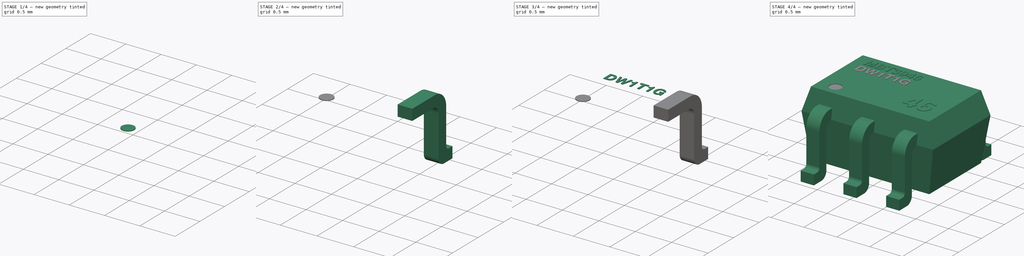
[diagram: build sequence overview — one tinted view per stage of 4, left to right]
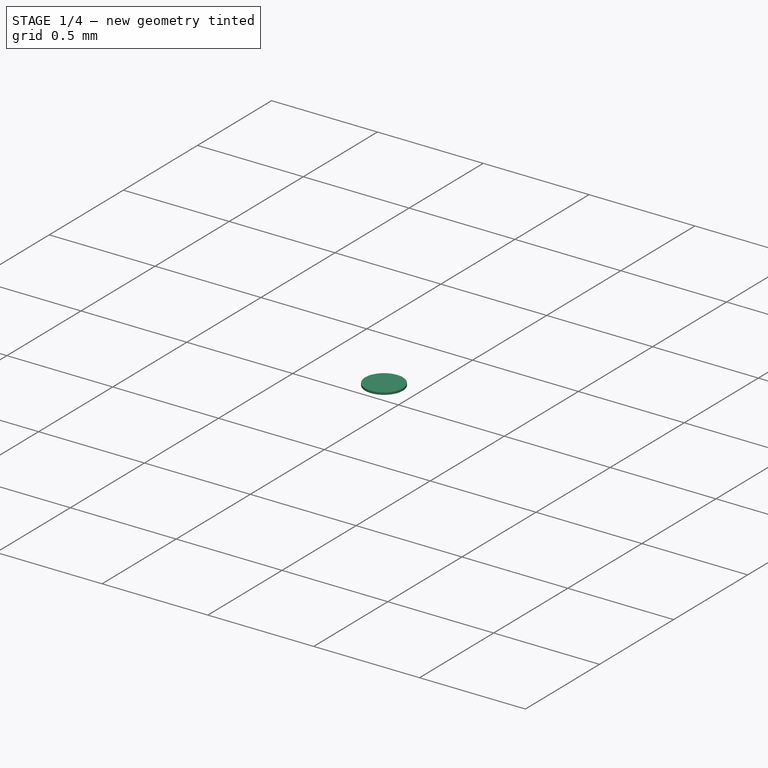
[diagram: stage 1 of 4 — iso view after this stage's code; geometry added in this stage tinted green]
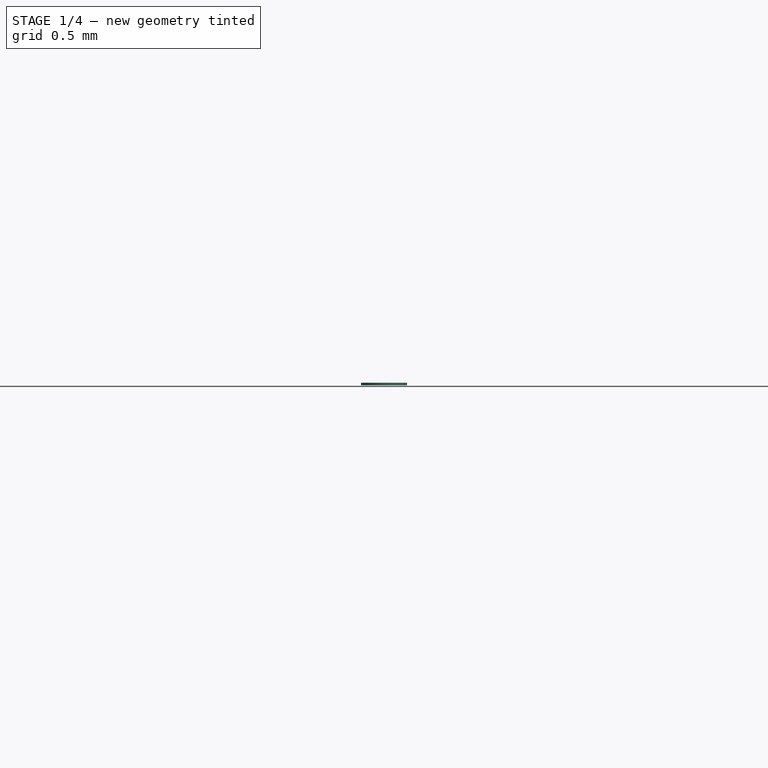
[diagram: stage 1 of 4 — front view after this stage's code; geometry added in this stage tinted green]
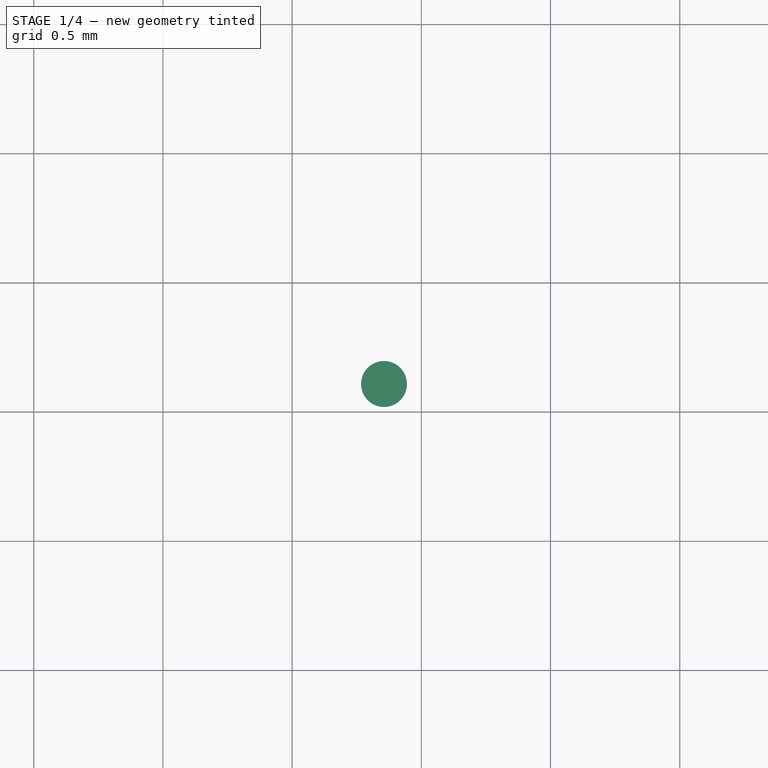
[diagram: stage 1 of 4 — top view after this stage's code; geometry added in this stage tinted green]
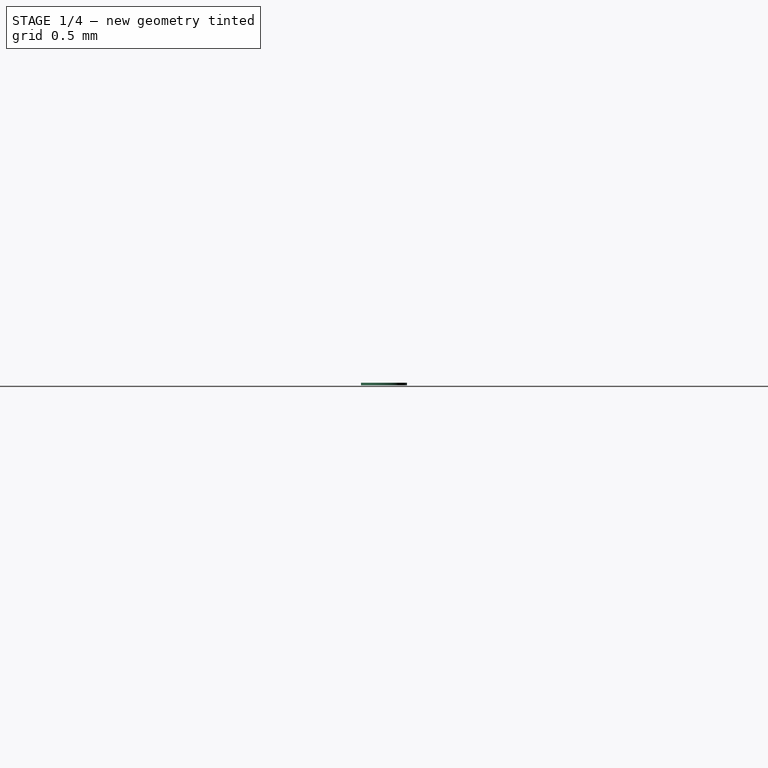
[diagram: stage 1 of 4 — right view after this stage's code; geometry added in this stage tinted green]
FCSTD DOCUMENT  (FreeCAD 0.19R16945 (Git))
Label: SC-88_SC-70-6_SOT-363
License: All rights reserved
LicenseURL: http://en.wikipedia.org/wiki/All_rights_reserved
objects: PartDesign::Body×8, Sketcher::SketchObject×6, PartDesign::FeatureBase×5, Part::Part2DObjectPython×3, Part::Extrusion×3, PartDesign::Pad×2, Spreadsheet::Sheet×1, PartDesign::AdditiveLoft×1, PartDesign::Pocket×1, PartDesign::ShapeBinder×1, Part::MultiFuse×1
note: 35 computed .brp shape members not serialized (recipe doc carries the construction recipe); baked Part::Feature solids carry a one-line shape summary decoded from their .brp

FEATURE [Spreadsheet::Sheet] Spreadsheet
  cells = A1=sc-88 sc-70-6 ; B1=NOM; A2=d_A; B2(d_A)==1.1mm; C2=max 1.1, no nom; A3=d_A1; B3(d_A1)==0.05mm; A4=d_b; B4(d_b)==0.2mm; A5=d_c; B5(d_c)==0.15mm; C5=x; A6=d_D; B6(d_D)==1.6mm; A7=d_E; B7(d_E)==0.8mm; A8=d_e; B8(d_e)==1mm; A9=d_L; B9(d_L)==0.15mm; A10=d_L1; C10=x; A11=d_HE; B11(d_HE)==1.6mm; A12=d_T; B12(d_T)=2; C12=angle; A14=d_C; B14(d_C)=0.85; C14=package draft factor
FEATURE [Sketcher::SketchObject] Sketch  label="Mid"
  AttachmentOffset = pos=(0,0,0.76) rot=(0,0,1;0rad)
  MapMode = 5
  Placement = pos=(0,0,0.76) rot=(0,0,1;0rad)
  Support = -> [XY_Plane]
  expr: AttachmentOffset.Base.z = 0.1 + 0.6 * 1.1
  sketch-geometry (4):
    g0: LineSegment StartX=-1 StartY=0.625 StartZ=0 EndX=1 EndY=0.625 EndZ=0
    g1: LineSegment StartX=1 StartY=0.625 StartZ=0 EndX=1 EndY=-0.625 EndZ=0
    g2: LineSegment StartX=1 StartY=-0.625 StartZ=0 EndX=-1 EndY=-0.625 EndZ=0
    g3: LineSegment StartX=-1 StartY=-0.625 StartZ=0 EndX=-1 EndY=0.625 EndZ=0
  constraints (11):
    c: Coincident(g0,g1)
    c: Coincident(g1,g2)
    c: Coincident(g2,g3)
    c: Coincident(g3,g0)
    c: Horizontal(g0)
    c: Horizontal(g2)
    c: Vertical(g1)
    c: Vertical(g3)
    c: Symmetric(g0,g2,g-1)
    c: DistanceX(g0,g0) = 2
    c: DistanceY(g3,g3) = 1.25
FEATURE [Sketcher::SketchObject] Sketch001  label="Bottom"
  AttachmentOffset = pos=(0,0,0.1) rot=(0,0,1;0rad)
  MapMode = 5
  Placement = pos=(0,0,0.1) rot=(0,0,1;0rad)
  Support = -> [XY_Plane]
  expr: Constraints[10] = 0.9 * 1.25
  expr: Constraints[9] = 0.9 * 2
  sketch-geometry (4):
    g0: LineSegment StartX=-0.9 StartY=0.5625 StartZ=0 EndX=0.9 EndY=0.5625 EndZ=0
    g1: LineSegment StartX=0.9 StartY=0.5625 StartZ=0 EndX=0.9 EndY=-0.5625 EndZ=0
    g2: LineSegment StartX=0.9 StartY=-0.5625 StartZ=0 EndX=-0.9 EndY=-0.5625 EndZ=0
    g3: LineSegment StartX=-0.9 StartY=-0.5625 StartZ=0 EndX=-0.9 EndY=0.5625 EndZ=0
  constraints (11):
    c: Coincident(g0,g1)
    c: Coincident(g1,g2)
    c: Coincident(g2,g3)
    c: Coincident(g3,g0)
    c: Horizontal(g0)
    c: Horizontal(g2)
    c: Vertical(g1)
    c: Vertical(g3)
    c: Symmetric(g0,g2,g-1)
    c: DistanceX(g0,g0) = 1.8
    c: DistanceY(g3,g3) = 1.125
FEATURE [Sketcher::SketchObject] Sketch002  label="Top"
  AttachmentOffset = pos=(0,0,1.1) rot=(0,0,1;0rad)
  MapMode = 5
  Placement = pos=(0,0,1.1) rot=(0,0,1;0rad)
  Support = -> [XY_Plane]
  expr: Constraints[9] = 0.9 * 2
  expr: Constraints[10] = 0.9 * 1.25
  sketch-geometry (4):
    g0: LineSegment StartX=-0.9 StartY=0.5625 StartZ=0 EndX=0.9 EndY=0.5625 EndZ=0
    g1: LineSegment StartX=0.9 StartY=0.5625 StartZ=0 EndX=0.9 EndY=-0.5625 EndZ=0
    g2: LineSegment StartX=0.9 StartY=-0.5625 StartZ=0 EndX=-0.9 EndY=-0.5625 EndZ=0
    g3: LineSegment StartX=-0.9 StartY=-0.5625 StartZ=0 EndX=-0.9 EndY=0.5625 EndZ=0
  constraints (11):
    c: Coincident(g0,g1)
    c: Coincident(g1,g2)
    c: Coincident(g2,g3)
    c: Coincident(g3,g0)
    c: Horizontal(g0)
    c: Horizontal(g2)
    c: Vertical(g1)
    c: Vertical(g3)
    c: Symmetric(g0,g2,g-1)
    c: DistanceX(g0,g0) = 1.8
    c: DistanceY(g3,g3) = 1.125
FEATURE [PartDesign::AdditiveLoft] AdditiveLoft
  Closed = true
  Profile = -> Sketch002
  Ruled = true
  Sections = -> [Sketch,Sketch001]
FEATURE [PartDesign::Body] Body006  label="LeadClone5"
  BaseFeature = -> Body001
  Group = -> [Clone004]
  Origin = -> Origin006
  Placement = pos=(-0.65,0,0) rot=(0,0,1;0rad)
  Tip = -> Clone004
FEATURE [Sketcher::SketchObject] Sketch004
  MapMode = 5
  Placement = pos=(0,0,1.1) rot=(0,0,1;0rad)
  Support = -> [AdditiveLoft]
  sketch-geometry (1):
    g0: Circle CenterX=-0.64443 CenterY=-0.391248 CenterZ=0 NormalX=0 NormalY=0 NormalZ=1 AngleXU=0 Radius=0.088803
FEATURE [PartDesign::Pocket] Pocket
  BaseFeature = -> AdditiveLoft
  Length = 0.02
  Length2 = 100
  Profile = -> Sketch004
  Type = 0
FEATURE [PartDesign::Body] Body  label="Housing"
  Group = -> [Sketch,Sketch001,Sketch002,AdditiveLoft,Sketch004,Pocket]
  Origin = -> Origin
  Tip = -> Pocket
FEATURE [PartDesign::ShapeBinder] ShapeBinder
  Placement = pos=(0,0,-0.02) rot=(0,0,1;0rad)
  Support = -> [Pocket]
  TraceSupport = false
FEATURE [Sketcher::SketchObject] Sketch005
  ExternalGeometry = -> [ShapeBinder]
  MapMode = 5
  Placement = pos=(0,0,1.08) rot=(0,0,1;0rad)
  Support = -> [ShapeBinder]
  sketch-geometry (1):
    g0: Circle CenterX=-0.64443 CenterY=-0.391248 CenterZ=0 NormalX=0 NormalY=0 NormalZ=1 AngleXU=0 Radius=0.088803
  constraints (2):
    c: Coincident(g0,g-3)
    c: Equal(g0,g-3)
FEATURE [PartDesign::Pad] Pad001
  Length = 0.01
  Length2 = 100
  Placement = pos=(0,0,-0.02) rot=(0,0,1;0rad)
  Profile = -> Sketch005
  Type = 0
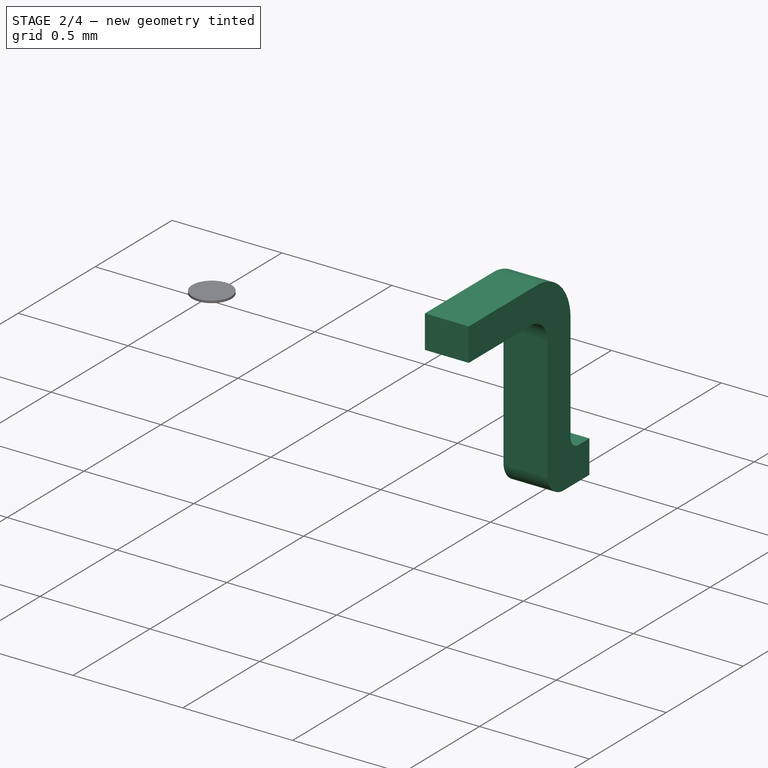
[diagram: stage 2 of 4 — iso view after this stage's code; geometry added in this stage tinted green]
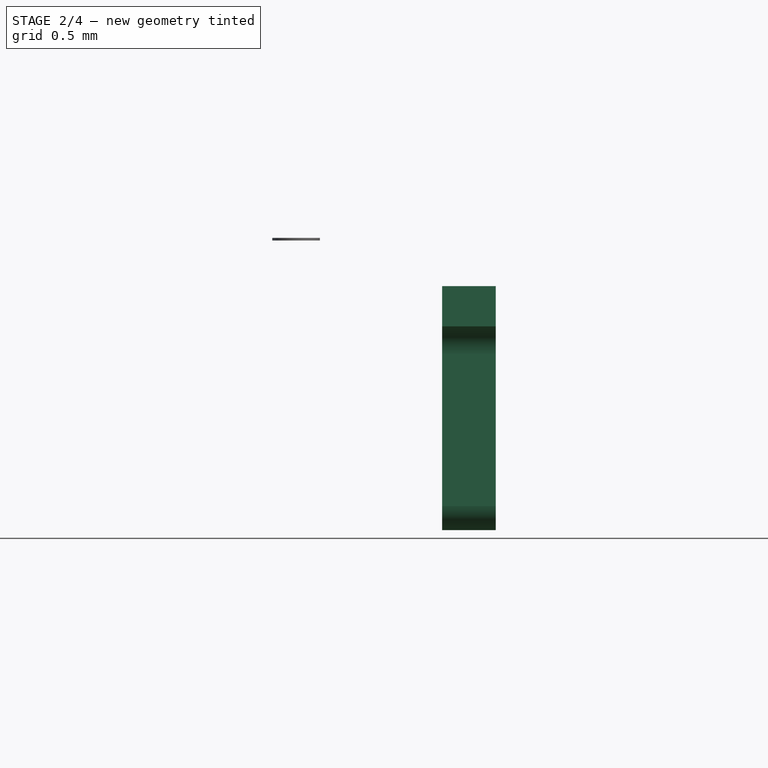
[diagram: stage 2 of 4 — front view after this stage's code; geometry added in this stage tinted green]
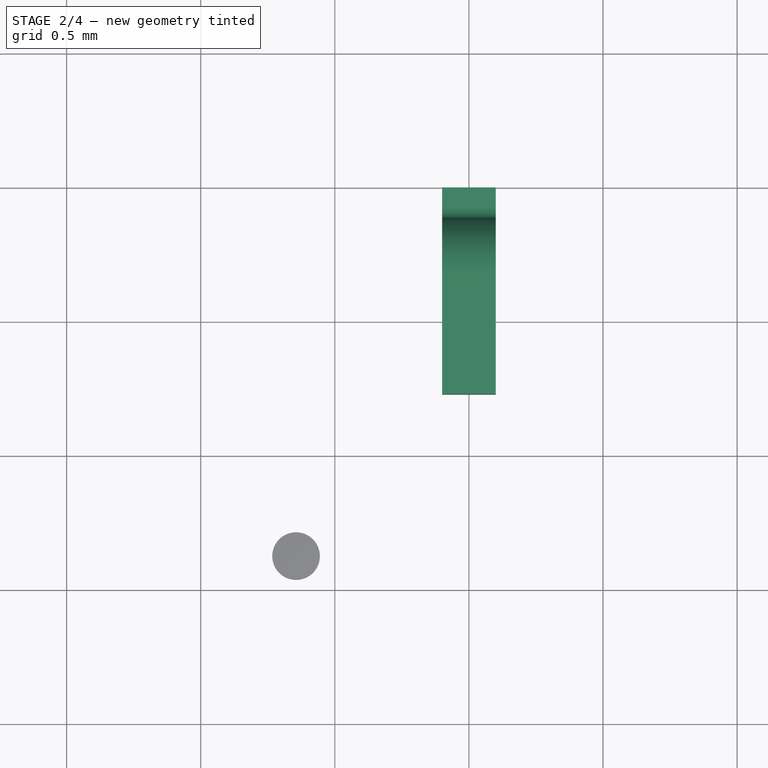
[diagram: stage 2 of 4 — top view after this stage's code; geometry added in this stage tinted green]
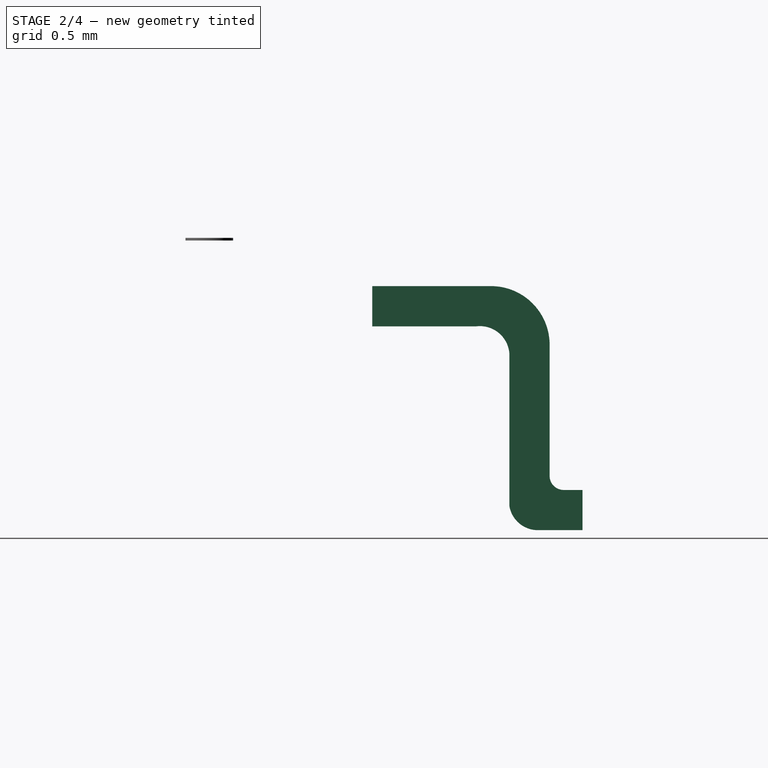
[diagram: stage 2 of 4 — right view after this stage's code; geometry added in this stage tinted green]
FEATURE [Sketcher::SketchObject] Sketch003
  MapMode = 5
  Placement = pos=(0,0,0) rot=(0.57735,0.57735,0.57735;2.0944rad)
  Support = -> [YZ_Plane001]
  expr: Constraints[25] = 0.1 + 0.6 * 1.1
  sketch-geometry (12):
    g0: LineSegment StartX=0.833676 StartY=0 StartZ=0 EndX=1 EndY=0 EndZ=0
    g1: ArcOfCircle CenterX=0.833676 CenterY=0.107595 CenterZ=0 NormalX=0 NormalY=0 NormalZ=1 AngleXU=0 Radius=0.107595 StartAngle=3.30444 EndAngle=4.71239
    g2: LineSegment StartX=1 StartY=0 StartZ=0 EndX=1 EndY=0.15 EndZ=0
    g3: LineSegment StartX=1 StartY=0.15 StartZ=0 EndX=0.932298 EndY=0.15 EndZ=0
    g4: ArcOfCircle CenterX=0.929816 CenterY=0.202266 CenterZ=0 NormalX=0 NormalY=0 NormalZ=1 AngleXU=0 Radius=0.0523248 StartAngle=3.16481 EndAngle=4.75985
    g5: LineSegment StartX=0.727505 StartY=0.0901505 StartZ=0 EndX=0.727505 EndY=0.657408 EndZ=0
    g6: LineSegment StartX=0.877505 StartY=0.201051 StartZ=0 EndX=0.877505 EndY=0.691246 EndZ=0
    g7: ArcOfCircle CenterX=0.617351 CenterY=0.650394 CenterZ=0 NormalX=0 NormalY=0 NormalZ=1 AngleXU=0 Radius=0.110377 StartAngle=0.0635886 EndAngle=1.6891
    g8: LineSegment StartX=0.604323 StartY=0.76 StartZ=0 EndX=0.216153 EndY=0.76 EndZ=0
    g9: LineSegment StartX=0.216153 StartY=0.76 StartZ=0 EndX=0.216153 EndY=0.91 EndZ=0
    g10: LineSegment StartX=0.216153 StartY=0.91 StartZ=0 EndX=0.658751 EndY=0.91 EndZ=0
    g11: ArcOfCircle CenterX=0.658751 CenterY=0.691246 CenterZ=0 NormalX=0 NormalY=0 NormalZ=1 AngleXU=0 Radius=0.218754 StartAngle=0 EndAngle=1.5708
  constraints (26):
    c: PointOnObject(g0,g-1)
    c: PointOnObject(g0,g-1)
    c: DistanceX(g-1,g0) = 1
    c: Tangent(g1,g0) = -1.5708
    c: Coincident(g2,g0)
    c: Vertical(g2)
    c: DistanceY(g2,g2) = 0.15
    c: Coincident(g3,g2)
    c: Horizontal(g3)
    c: Coincident(g4,g3)
    c: Coincident(g5,g1)
    c: Vertical(g5)
    c: Coincident(g6,g4)
    c: Vertical(g6)
    c: DistanceX(g1,g4) = 0.15
    c: Coincident(g7,g5)
    c: Coincident(g8,g7)
    c: Horizontal(g8)
    c: Coincident(g9,g8)
    c: Vertical(g9)
    c: Coincident(g10,g9)
    c: Horizontal(g10)
    c: DistanceY(g9,g9) = 0.15
    c: Tangent(g6,g11) = -1.5708
    c: Tangent(g10,g11) = 1.5708
    c: DistanceY(g-1,g8) = 0.76
FEATURE [PartDesign::Pad] Pad
  Length = 0.2
  Length2 = 100
  Midplane = true
  Placement = pos=(0,0,0) rot=(0.57735,0.57735,0.57735;2.0944rad)
  Profile = -> Sketch003
  Type = 0
FEATURE [PartDesign::Body] Body004  label="LeadClone3"
  BaseFeature = -> Body001
  Group = -> [Clone002]
  Origin = -> Origin004
  Placement = pos=(0,0,0) rot=(0,0,1;3.14159rad)
  Tip = -> Clone002
FEATURE [PartDesign::FeatureBase] Clone003
  BaseFeature = -> Body001
FEATURE [PartDesign::Body] Body005  label="LeadClone4"
  BaseFeature = -> Body001
  Group = -> [Clone003]
  Origin = -> Origin005
  Placement = pos=(0.65,0,0) rot=(0,0,1;0rad)
  Tip = -> Clone003
FEATURE [PartDesign::FeatureBase] Clone004
  BaseFeature = -> Body001
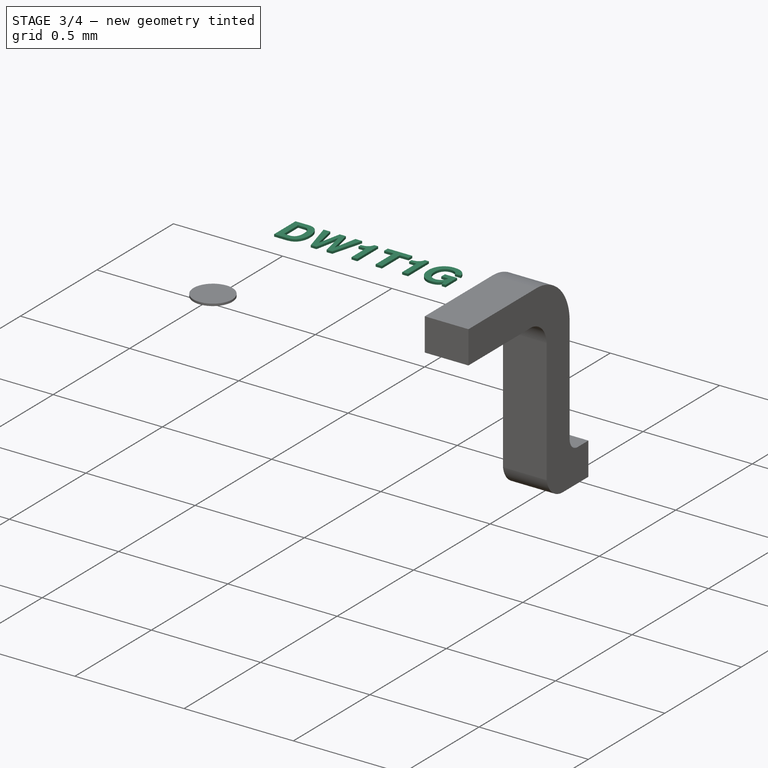
[diagram: stage 3 of 4 — iso view after this stage's code; geometry added in this stage tinted green]
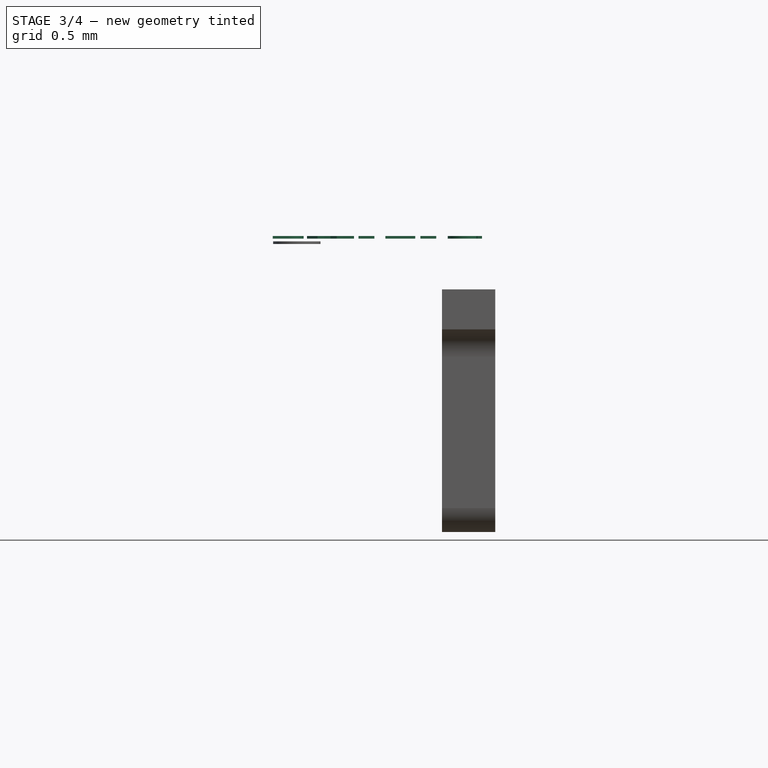
[diagram: stage 3 of 4 — front view after this stage's code; geometry added in this stage tinted green]
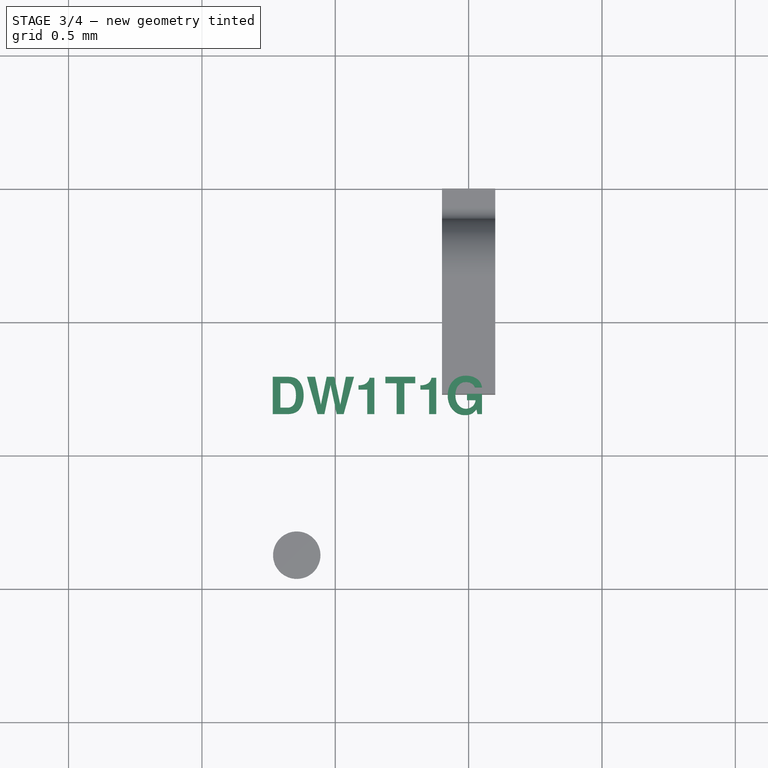
[diagram: stage 3 of 4 — top view after this stage's code; geometry added in this stage tinted green]
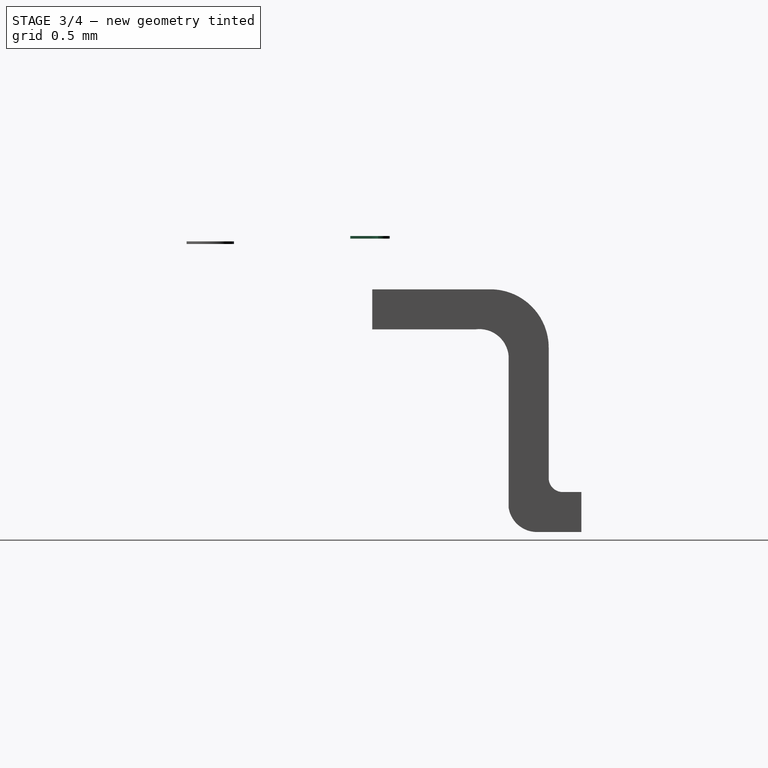
[diagram: stage 3 of 4 — right view after this stage's code; geometry added in this stage tinted green]
FEATURE [PartDesign::Body] Body001  label="Lead"
  Group = -> [Sketch003,Pad]
  Origin = -> Origin001
  Tip = -> Pad
FEATURE [PartDesign::FeatureBase] Clone
  BaseFeature = -> Body001
FEATURE [PartDesign::Body] Body002  label="LeadClone1"
  BaseFeature = -> Body001
  Group = -> [Clone]
  Origin = -> Origin002
  Placement = pos=(0.65,0,0) rot=(0,0,1;3.14159rad)
  Tip = -> Clone
  expr: Placement.Base.x = 0.65
FEATURE [PartDesign::FeatureBase] Clone001
  BaseFeature = -> Body001
FEATURE [PartDesign::Body] Body003  label="LeadClone2"
  BaseFeature = -> Body001
  Group = -> [Clone001]
  Origin = -> Origin003
  Placement = pos=(-0.65,0,0) rot=(0,0,1;3.14159rad)
  Tip = -> Clone001
  expr: Placement.Base.x = -0.65
FEATURE [Part::Part2DObjectPython] ShapeString002  # Draft 2D object (typed FeaturePython)
  AttachmentOffset = pos=(-0.15,-0.7,0) rot=(0,0,1;3.14159rad)
  FontFile = <userpath>/Desktop/GitHub/freecad-projects/00-fonts/FreeSansBold.ttf
  MapMode = 6
  Placement = pos=(-0.75,0.1375,1.1) rot=(0,0,1;0rad)
  Size = 0.075
  String = DW1T1G
  Support = -> [AdditiveLoft]
  Tracking = 0
FEATURE [Part::Extrusion] Extrude002
  Base = -> ShapeString002
  Dir = (0,0,1)
  DirMode = 2
  FaceMakerClass = Part::FaceMakerBullseye
  LengthFwd = 0.01
  LengthRev = 0
  Solid = false
  Symmetric = false
FEATURE [PartDesign::FeatureBase] Clone002
  BaseFeature = -> Body001
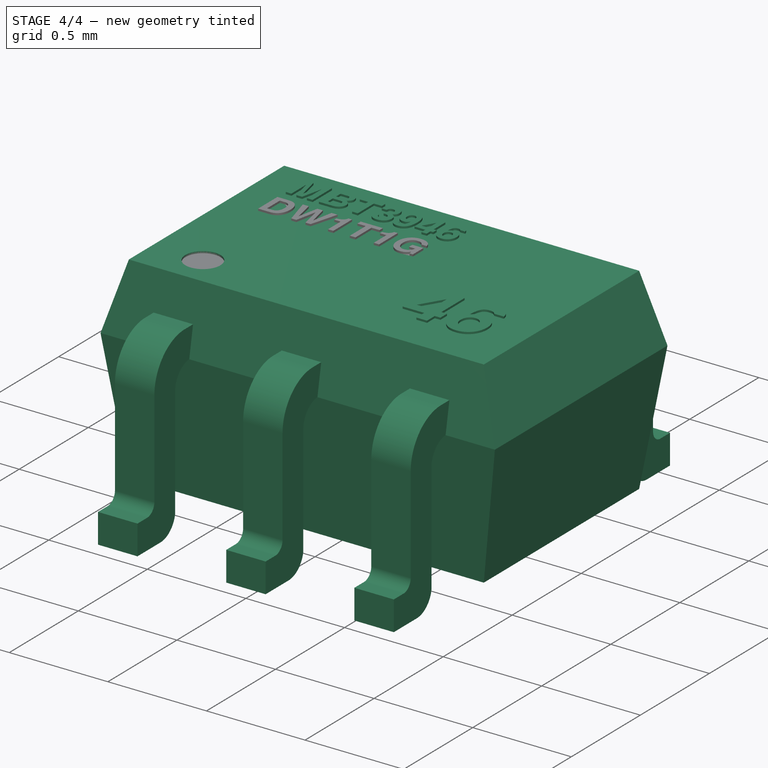
[diagram: stage 4 of 4 — iso view after this stage's code; geometry added in this stage tinted green]
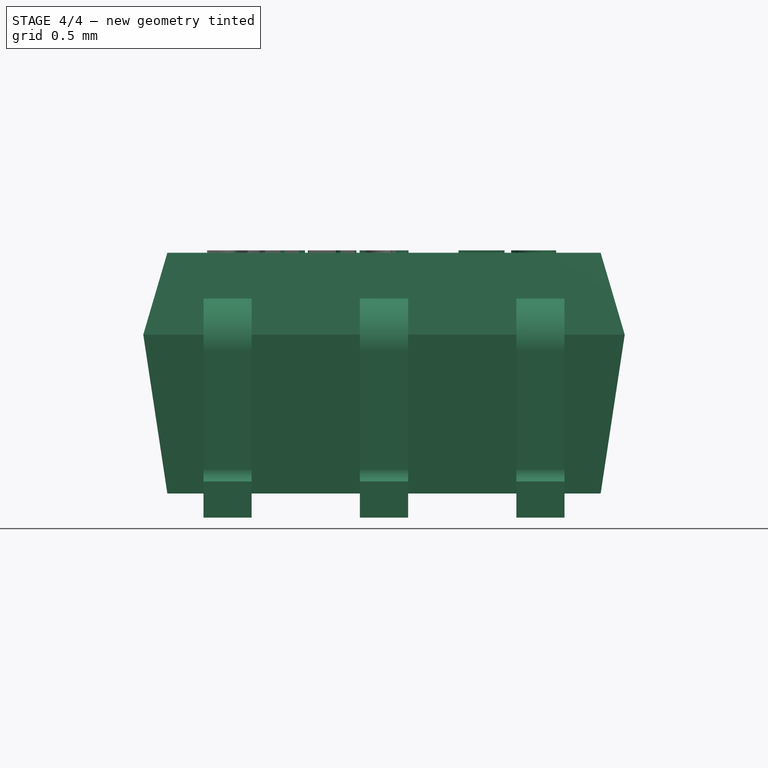
[diagram: stage 4 of 4 — front view after this stage's code; geometry added in this stage tinted green]
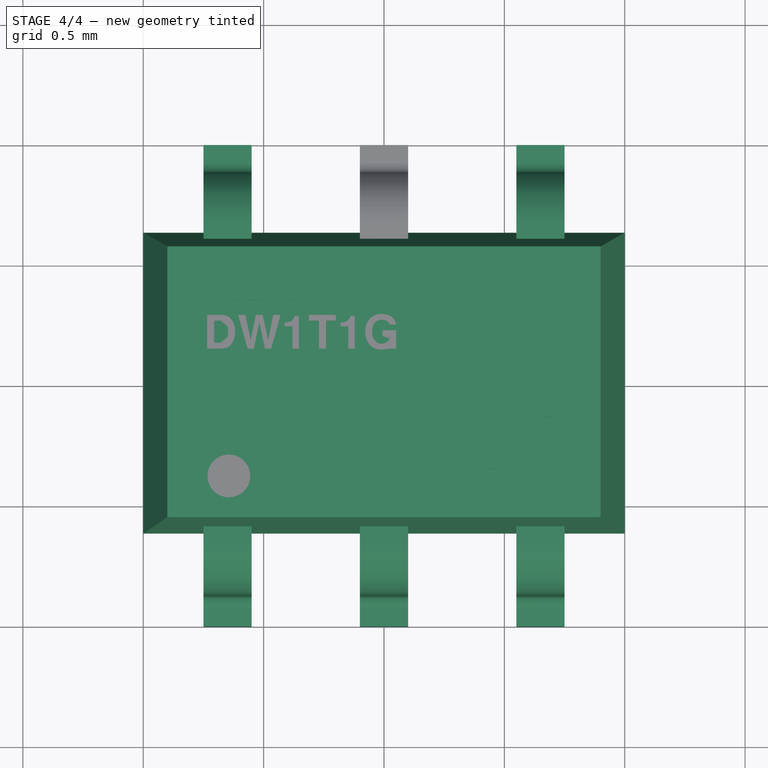
[diagram: stage 4 of 4 — top view after this stage's code; geometry added in this stage tinted green]
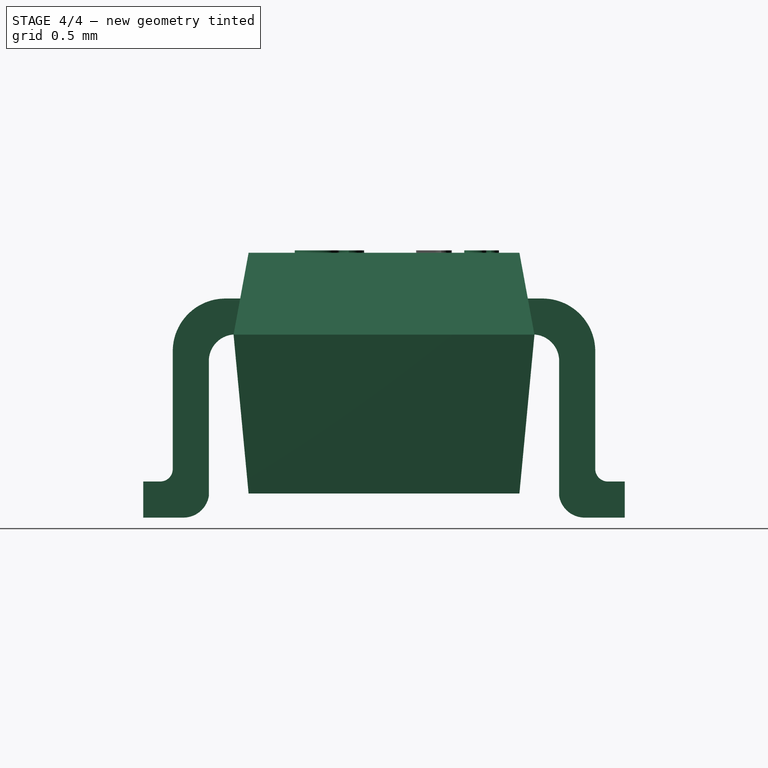
[diagram: stage 4 of 4 — right view after this stage's code; geometry added in this stage tinted green]
FEATURE [Part::Part2DObjectPython] ShapeString  # Draft 2D object (typed FeaturePython)
  AttachmentOffset = pos=(-0.15,-0.9,0) rot=(0,0,1;3.14159rad)
  FontFile = <userpath>/Desktop/GitHub/freecad-projects/00-fonts/FreeSansBold.ttf
  MapMode = 6
  Placement = pos=(-0.75,0.3375,1.1) rot=(0,0,1;0rad)
  Size = 0.075
  String = MBT3946
  Support = -> [AdditiveLoft]
  Tracking = 0
FEATURE [Part::Part2DObjectPython] ShapeString001  # Draft 2D object (typed FeaturePython)
  AttachmentOffset = pos=(-1.2,-0.2,0) rot=(0,0,1;3.14159rad)
  FontFile = <userpath>/Desktop/GitHub/freecad-projects/00-fonts/FreeSansBold.ttf
  MapMode = 6
  Placement = pos=(0.3,-0.3625,1.1) rot=(0,0,1;0rad)
  Size = 0.15
  String = 46
  Support = -> [AdditiveLoft]
  Tracking = 0
FEATURE [Part::Extrusion] Extrude  label="Text_1"
  Base = -> ShapeString
  Dir = (0,0,1)
  DirMode = 2
  FaceMakerClass = Part::FaceMakerBullseye
  LengthFwd = 0.01
  LengthRev = 0
  Solid = false
  Symmetric = false
FEATURE [Part::Extrusion] Extrude001
  Base = -> ShapeString001
  Dir = (0,0,1)
  DirMode = 2
  FaceMakerClass = Part::FaceMakerBullseye
  LengthFwd = 0.01
  LengthRev = 0
  Solid = false
  Symmetric = false
FEATURE [PartDesign::Body] Body007
  Group = -> [ShapeBinder,Sketch005,Pad001]
  Origin = -> Origin007
  Tip = -> Pad001
FEATURE [Part::MultiFuse] Fusion  label="MBT3946DW1T1G"
  Shapes = -> [Body,Body001,Extrude002,Extrude001,Extrude,Body007,Body006,Body004,Body005,Body003,Body002]
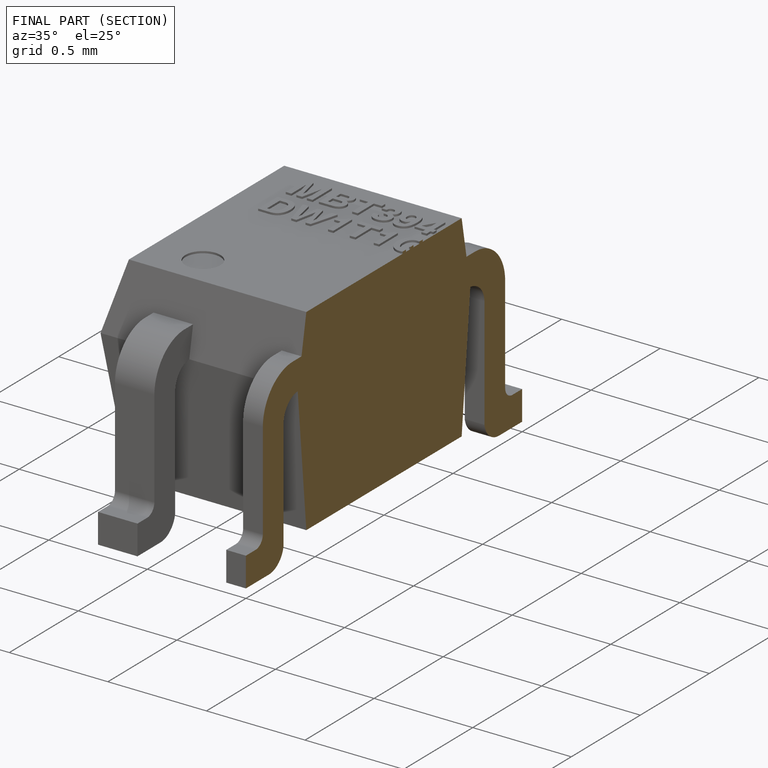
[diagram: finished part — half-section view (interior)]
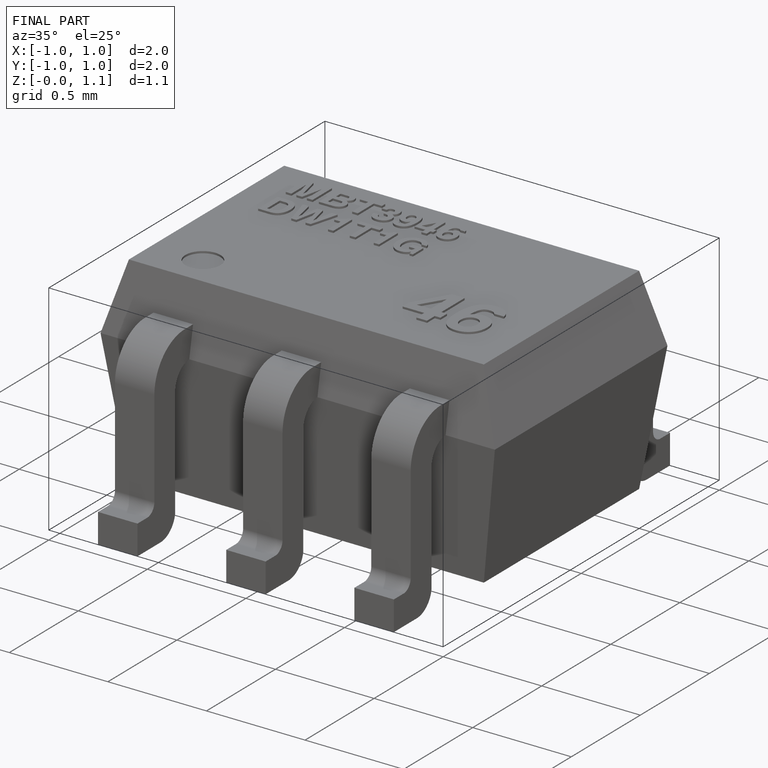
[diagram: finished part — iso view with bounding-box wireframe]
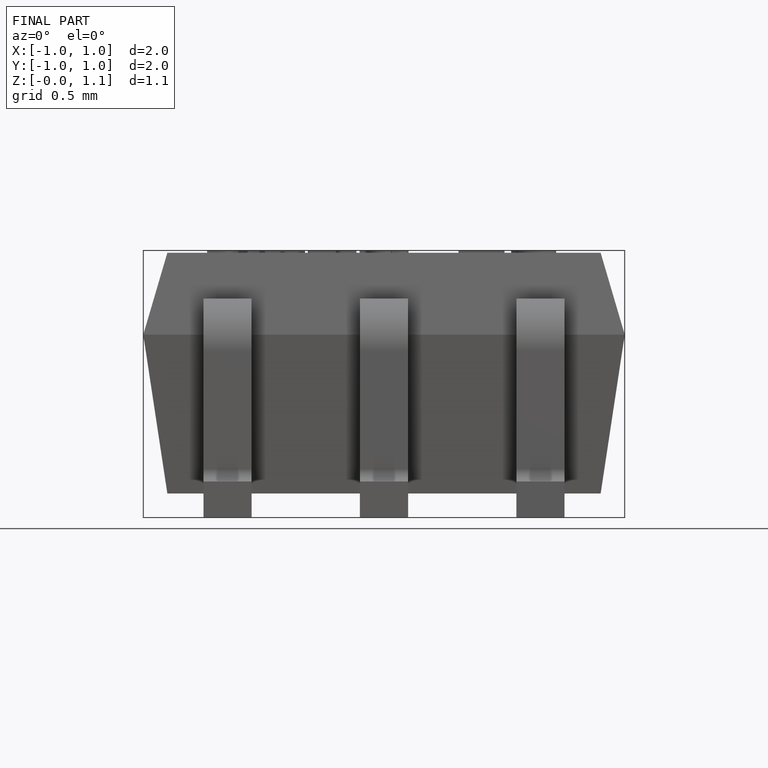
[diagram: finished part — front view with bounding-box wireframe]
